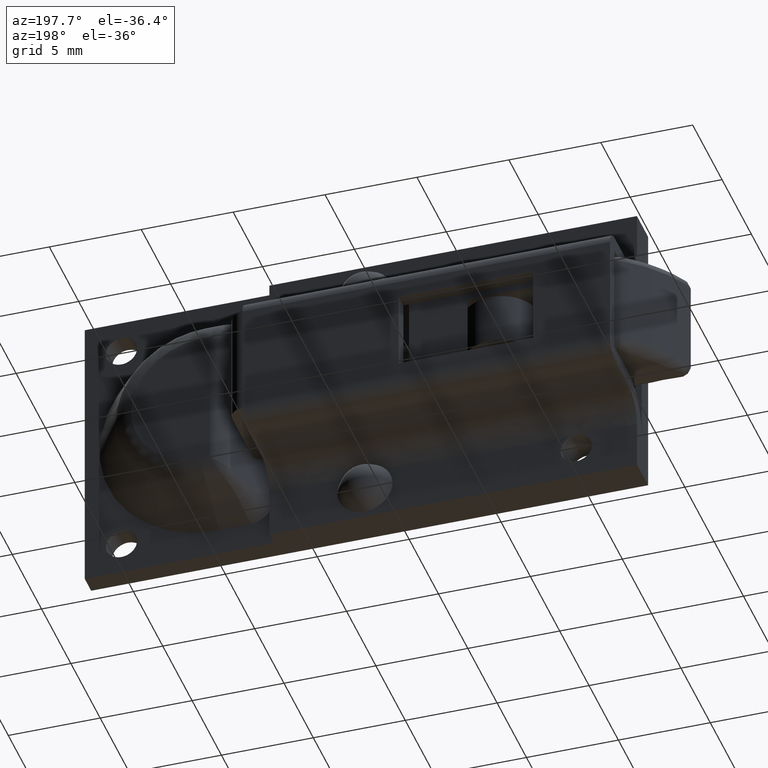
[diagram: clean part render]
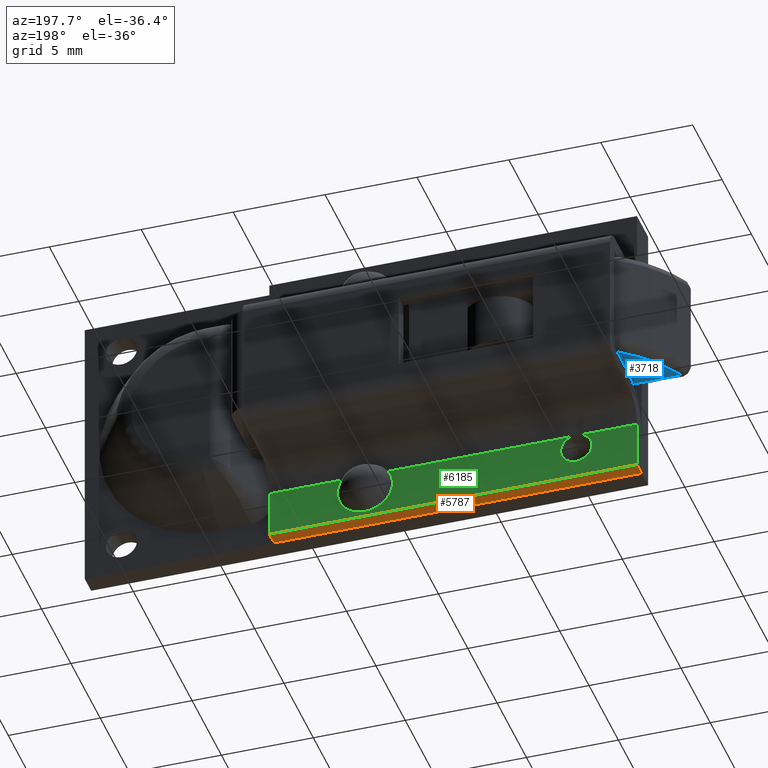
[diagram: same view with three faces highlighted in distinct colors, each labeled with its STEP entity id]
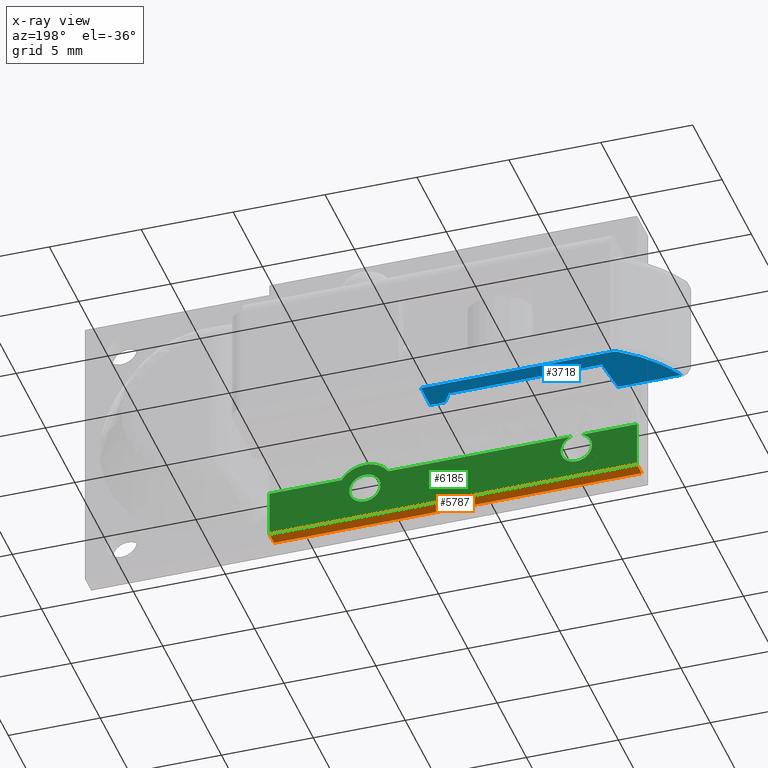
[diagram: x-ray of the same camera — body ghosted, the three highlighted faces saturated]
A machine part, auxiliary view with three faces highlighted in distinct colors.
The next image is the same camera in x-ray (body ghosted, the three faces saturated) — at least one of them is partly hidden behind the body in this view.
Their STEP definitions:

[orange] entity #5787 — the highlighted face is a freeform B-spline surface patch.
#5517=CARTESIAN_POINT('',(-8.0,1.900000000000000,-8.0));
#5518=VERTEX_POINT('',#5517);
#5524=CARTESIAN_POINT('',(-8.0,1.099997000000000,-8.0));
#5525=VERTEX_POINT('',#5524);
#5526=CARTESIAN_POINT('',(-8.0,1.900000000000000,-8.0));
#5527=CARTESIAN_POINT('',(-8.0,1.099997000000000,-8.0));
#5528=QUASI_UNIFORM_CURVE('',1,(#5526,#5527),.UNSPECIFIED.,.F.,.U.);
#5529=EDGE_CURVE('',#5518,#5525,#5528,.T.);
#5760=CARTESIAN_POINT('',(12.998999961236120,1.060036899617868,-8.0));
#5761=CARTESIAN_POINT('',(-8.999000497677923,1.060036899617868,-8.0));
#5762=CARTESIAN_POINT('',(12.998999961236120,1.939960107534716,-8.0));
#5763=CARTESIAN_POINT('',(-8.999000497677923,1.939960107534716,-8.0));
#5764=B_SPLINE_SURFACE_WITH_KNOTS('',1,1,((#5760,#5762),(#5761,#5763)),.UNSPECIFIED.,.F.,.F.,.U.,(2,2),(2,2),(0.0,21.998000458914039),(0.041708384862170,0.958291622588411),.UNSPECIFIED.);
#5765=ORIENTED_EDGE('',*,*,#5529,.F.);
#5766=CARTESIAN_POINT('',(12.0,1.900000000000000,-8.0));
#5767=VERTEX_POINT('',#5766);
#5768=CARTESIAN_POINT('',(12.0,1.900000000000000,-8.0));
#5769=CARTESIAN_POINT('',(-8.0,1.900000000000000,-8.0));
#5770=QUASI_UNIFORM_CURVE('',1,(#5768,#5769),.UNSPECIFIED.,.F.,.U.);
#5771=EDGE_CURVE('',#5767,#5518,#5770,.T.);
#5772=ORIENTED_EDGE('',*,*,#5771,.F.);
#5773=CARTESIAN_POINT('',(12.0,1.099997000000000,-8.0));
#5774=VERTEX_POINT('',#5773);
#5775=CARTESIAN_POINT('',(12.0,1.900000000000000,-8.0));
#5776=CARTESIAN_POINT('',(12.0,1.099997000000000,-8.0));
#5777=QUASI_UNIFORM_CURVE('',1,(#5775,#5776),.UNSPECIFIED.,.F.,.U.);
#5778=EDGE_CURVE('',#5767,#5774,#5777,.T.);
#5779=ORIENTED_EDGE('',*,*,#5778,.T.);
#5780=CARTESIAN_POINT('',(12.0,1.099997000000000,-8.0));
#5781=CARTESIAN_POINT('',(-8.0,1.099997000000000,-8.0));
#5782=QUASI_UNIFORM_CURVE('',1,(#5780,#5781),.UNSPECIFIED.,.F.,.U.);
#5783=EDGE_CURVE('',#5774,#5525,#5782,.T.);
#5784=ORIENTED_EDGE('',*,*,#5783,.T.);
#5785=EDGE_LOOP('',(#5765,#5772,#5779,#5784));
#5786=FACE_OUTER_BOUND('',#5785,.T.);
#5787=ADVANCED_FACE('',(#5786),#5764,.T.);

[blue] entity #3718 — the highlighted face is a freeform B-spline surface patch.
#2687=CARTESIAN_POINT('',(-7.054643407374501,1.599997000000000,-3.0));
#2688=VERTEX_POINT('',#2687);
#2704=CARTESIAN_POINT('',(-6.854643407374500,3.699997000000000,-3.0));
#2705=VERTEX_POINT('',#2704);
#2706=CARTESIAN_POINT('',(-6.854643407374500,3.699997000000000,-3.0));
#2707=CARTESIAN_POINT('',(-7.054643407374501,1.599997000000000,-3.0));
#2708=QUASI_UNIFORM_CURVE('',1,(#2706,#2707),.UNSPECIFIED.,.F.,.U.);
#2709=EDGE_CURVE('',#2705,#2688,#2708,.T.);
#2748=CARTESIAN_POINT('',(1.464406292735640,3.699997000000000,-3.0));
#2749=VERTEX_POINT('',#2748);
#2771=CARTESIAN_POINT('',(1.464406292735640,3.699997000000000,-3.0));
#2772=CARTESIAN_POINT('',(-6.854643407374500,3.699997000000000,-3.0));
#2773=QUASI_UNIFORM_CURVE('',1,(#2771,#2772),.UNSPECIFIED.,.F.,.U.);
#2774=EDGE_CURVE('',#2749,#2705,#2773,.T.);
#2795=CARTESIAN_POINT('',(-10.500112306272760,1.599997000000000,-3.0));
#2796=VERTEX_POINT('',#2795);
#2810=CARTESIAN_POINT('',(-7.054643407374501,1.599997000000000,-3.0));
#2811=CARTESIAN_POINT('',(-10.500112306272760,1.599997000000000,-3.0));
#2812=QUASI_UNIFORM_CURVE('',1,(#2810,#2811),.UNSPECIFIED.,.F.,.U.);
#2813=EDGE_CURVE('',#2688,#2796,#2812,.T.);
#2838=CARTESIAN_POINT('',(1.877154515628485,3.039461772422355,-3.0));
#2839=VERTEX_POINT('',#2838);
#2861=CARTESIAN_POINT('',(1.877154515628485,3.039461772422355,-3.0));
#2862=CARTESIAN_POINT('',(1.464406292735640,3.699997000000000,-3.0));
#2863=QUASI_UNIFORM_CURVE('',1,(#2861,#2862),.UNSPECIFIED.,.F.,.U.);
#2864=EDGE_CURVE('',#2839,#2749,#2863,.T.);
#2941=CARTESIAN_POINT('',(2.700000000000000,3.039461772422355,-3.0));
#2942=VERTEX_POINT('',#2941);
#2964=CARTESIAN_POINT('',(2.700000000000000,3.039461772422355,-3.0));
#2965=CARTESIAN_POINT('',(1.877154515628485,3.039461772422355,-3.0));
#2966=QUASI_UNIFORM_CURVE('',1,(#2964,#2965),.UNSPECIFIED.,.F.,.U.);
#2967=EDGE_CURVE('',#2942,#2839,#2966,.T.);
#2991=CARTESIAN_POINT('',(-7.984340529275508,4.512974888218630,-3.0));
#2992=VERTEX_POINT('',#2991);
#3006=CARTESIAN_POINT('',(-10.500112306272770,1.599997000000005,-3.0));
#3007=CARTESIAN_POINT('',(-9.628868948889069,3.390406902280602,-3.000000000000000));
#3008=CARTESIAN_POINT('',(-7.984340529275505,4.512974888218628,-3.0));
#3016=(BOUNDED_CURVE()B_SPLINE_CURVE(2,(#3006,#3007,#3008),.UNSPECIFIED.,.F.,.U.)CURVE()GEOMETRIC_REPRESENTATION_ITEM()QUASI_UNIFORM_CURVE()RATIONAL_B_SPLINE_CURVE((1.0,0.966524194806806,1.0))REPRESENTATION_ITEM(''));
#3017=EDGE_CURVE('',#2796,#2992,#3016,.T.);
#3071=CARTESIAN_POINT('',(-7.702469000000000,4.599996999999890,-3.0));
#3072=VERTEX_POINT('',#3071);
#3088=CARTESIAN_POINT('',(-7.984340529275508,4.512974888218630,-3.0));
#3089=CARTESIAN_POINT('',(-7.856838566662417,4.599997947849363,-3.0));
#3090=CARTESIAN_POINT('',(-7.702469000000000,4.599996999999890,-3.0));
#3098=(BOUNDED_CURVE()B_SPLINE_CURVE(2,(#3088,#3089,#3090),.UNSPECIFIED.,.F.,.U.)CURVE()GEOMETRIC_REPRESENTATION_ITEM()QUASI_UNIFORM_CURVE()RATIONAL_B_SPLINE_CURVE((1.0,0.955497772116606,1.0))REPRESENTATION_ITEM(''));
#3099=EDGE_CURVE('',#2992,#3072,#3098,.T.);
#3181=CARTESIAN_POINT('',(2.700000000000000,4.599997000000000,-3.0));
#3182=VERTEX_POINT('',#3181);
#3183=CARTESIAN_POINT('',(2.700000000000000,4.599997000000000,-3.0));
#3184=CARTESIAN_POINT('',(2.700000000000000,3.039461772422355,-3.0));
#3185=QUASI_UNIFORM_CURVE('',1,(#3183,#3184),.UNSPECIFIED.,.F.,.U.);
#3186=EDGE_CURVE('',#3182,#2942,#3185,.T.);
#3249=CARTESIAN_POINT('',(-7.702469000000000,4.599996999999890,-3.0));
#3250=CARTESIAN_POINT('',(2.700000000000000,4.599997000000000,-3.0));
#3251=QUASI_UNIFORM_CURVE('',1,(#3249,#3250),.UNSPECIFIED.,.F.,.U.);
#3252=EDGE_CURVE('',#3072,#3182,#3251,.T.);
#3702=CARTESIAN_POINT('',(-11.159458138213131,1.450147033976435,-3.0));
#3703=CARTESIAN_POINT('',(3.359345949958565,1.450147033976435,-3.0));
#3704=CARTESIAN_POINT('',(-11.159458138213131,4.749847073311925,-3.0));
#3705=CARTESIAN_POINT('',(3.359345949958565,4.749847073311925,-3.0));
#3706=B_SPLINE_SURFACE_WITH_KNOTS('',1,1,((#3702,#3704),(#3703,#3705)),.UNSPECIFIED.,.F.,.F.,.U.,(2,2),(2,2),(0.0,14.518804088171690),(0.0,3.299700039335489),.UNSPECIFIED.);
#3707=ORIENTED_EDGE('',*,*,#2774,.T.);
#3708=ORIENTED_EDGE('',*,*,#2709,.T.);
#3709=ORIENTED_EDGE('',*,*,#2813,.T.);
#3710=ORIENTED_EDGE('',*,*,#3017,.T.);
#3711=ORIENTED_EDGE('',*,*,#3099,.T.);
#3712=ORIENTED_EDGE('',*,*,#3252,.T.);
#3713=ORIENTED_EDGE('',*,*,#3186,.T.);
#3714=ORIENTED_EDGE('',*,*,#2967,.T.);
#3715=ORIENTED_EDGE('',*,*,#2864,.T.);
#3716=EDGE_LOOP('',(#3707,#3708,#3709,#3710,#3711,#3712,#3713,#3714,#3715));
#3717=FACE_OUTER_BOUND('',#3716,.T.);
#3718=ADVANCED_FACE('',(#3717),#3706,.F.);

[green] entity #6185 — the highlighted face is a freeform B-spline surface patch.
#4259=CARTESIAN_POINT('',(6.252957478574748,1.900000000000000,-6.850566902077073));
#4260=VERTEX_POINT('',#4259);
#4266=CARTESIAN_POINT('',(6.512783223537830,1.900000000000000,-5.399994000000000));
#4267=VERTEX_POINT('',#4266);
#4268=CARTESIAN_POINT('',(6.512783223537825,1.900000000000000,-5.399993999999988));
#4269=CARTESIAN_POINT('',(5.840008508814952,1.900000000000000,-5.641535848183187));
#4270=CARTESIAN_POINT('',(5.962595527499302,1.900000000000000,-6.345766424091591));
#4271=CARTESIAN_POINT('',(6.015746104220259,1.900000000000000,-6.651102679559571));
#4272=CARTESIAN_POINT('',(6.252957478574748,1.900000000000000,-6.850566902077073));
#4280=(BOUNDED_CURVE()B_SPLINE_CURVE(2,(#4268,#4269,#4270,#4271,#4272),.UNSPECIFIED.,.F.,.U.)B_SPLINE_CURVE_WITH_KNOTS((3,2,3),(0.0,0.250000000000000,0.375009439131359),.UNSPECIFIED.)CURVE()GEOMETRIC_REPRESENTATION_ITEM()RATIONAL_B_SPLINE_CURVE((1.0,0.765340917535369,1.0,0.882661598856069,0.882670459436723))REPRESENTATION_ITEM(''));
#4281=EDGE_CURVE('',#4267,#4260,#4280,.T.);
#4283=CARTESIAN_POINT('',(7.087222776462180,1.900000000000000,-5.399994000000000));
#4284=VERTEX_POINT('',#4283);
#4285=CARTESIAN_POINT('',(7.087222776462180,1.900000000000000,-5.399994000000000));
#4286=CARTESIAN_POINT('',(6.947947770242990,1.900000000000000,-5.350092728982340));
#4287=CARTESIAN_POINT('',(6.800002999999943,1.900000000000000,-5.349997000000012));
#4288=CARTESIAN_POINT('',(6.652591627790971,1.900000000000000,-5.349901616157635));
#4289=CARTESIAN_POINT('',(6.512783223537830,1.900000000000000,-5.399994000000000));
#4290=B_SPLINE_CURVE_WITH_KNOTS('',2,(#4285,#4286,#4287,#4288,#4289),.UNSPECIFIED.,.F.,.U.,(3,2,3),(0.0,0.500000000000000,1.0),.UNSPECIFIED.);
#4291=EDGE_CURVE('',#4284,#4267,#4290,.T.);
#4293=CARTESIAN_POINT('',(6.788866821037946,1.900000000000000,-7.049924047174123));
#4294=VERTEX_POINT('',#4293);
#4295=CARTESIAN_POINT('',(6.788866821037946,1.900000000000000,-7.049924047174123));
#4296=CARTESIAN_POINT('',(6.794434671489611,1.900000000000000,-7.049997000000000));
#4297=CARTESIAN_POINT('',(6.800002999999999,1.900000000000000,-7.049996999999999));
#4298=CARTESIAN_POINT('',(7.514823453816337,1.900000000000000,-7.049996999999999));
#4299=CARTESIAN_POINT('',(7.637410472500695,1.900000000000000,-6.345766424091601));
#4300=CARTESIAN_POINT('',(7.759997491185054,1.900000000000000,-5.641535848183199));
#4301=CARTESIAN_POINT('',(7.087222776462183,1.900000000000000,-5.399993999999992));
#4309=(BOUNDED_CURVE()B_SPLINE_CURVE(2,(#4295,#4296,#4297,#4298,#4299,#4300,#4301),.UNSPECIFIED.,.F.,.U.)B_SPLINE_CURVE_WITH_KNOTS((3,2,2,3),(0.497461501481753,0.500000000000000,0.750000000000000,1.0),.UNSPECIFIED.)CURVE()GEOMETRIC_REPRESENTATION_ITEM()RATIONAL_B_SPLINE_CURVE((0.995282934525264,0.997617273067481,1.0,0.765340917535369,1.0,0.765340917535369,1.0))REPRESENTATION_ITEM(''));
#4310=EDGE_CURVE('',#4294,#4284,#4309,.T.);
#4384=CARTESIAN_POINT('',(6.252957478574748,1.900000000000000,-6.850566902077073));
#4385=CARTESIAN_POINT('',(6.485311492515894,1.900000000000000,-7.045946709920234));
#4386=CARTESIAN_POINT('',(6.788866821037946,1.900000000000000,-7.049924047174123));
#4394=(BOUNDED_CURVE()B_SPLINE_CURVE(2,(#4384,#4385,#4386),.UNSPECIFIED.,.F.,.U.)B_SPLINE_CURVE_WITH_KNOTS((3,3),(0.375009439131359,0.497461501481753),.UNSPECIFIED.)CURVE()GEOMETRIC_REPRESENTATION_ITEM()RATIONAL_B_SPLINE_CURVE((0.882670459436723,0.882679138752320,0.995282934525263))REPRESENTATION_ITEM(''));
#4395=EDGE_CURVE('',#4260,#4294,#4394,.T.);
#4446=CARTESIAN_POINT('',(-5.294173995004110,1.900000000000000,-6.807832030170788));
#4447=VERTEX_POINT('',#4446);
#4453=CARTESIAN_POINT('',(-4.987194492814640,1.900000000000000,-5.399994000000000));
#4454=VERTEX_POINT('',#4453);
#4455=CARTESIAN_POINT('',(-4.987194492814637,1.900000000000000,-5.399994000000008));
#4456=CARTESIAN_POINT('',(-5.659985446148970,1.900000000000000,-5.641520522742810));
#4457=CARTESIAN_POINT('',(-5.537406502573261,1.900000000000000,-6.345762761371406));
#4458=CARTESIAN_POINT('',(-5.490360667527482,1.900000000000000,-6.616051142265530));
#4459=CARTESIAN_POINT('',(-5.294173995004110,1.899999999999999,-6.807832030170788));
#4467=(BOUNDED_CURVE()B_SPLINE_CURVE(2,(#4455,#4456,#4457,#4458,#4459),.UNSPECIFIED.,.F.,.U.)B_SPLINE_CURVE_WITH_KNOTS((3,2,3),(0.0,0.250000000000000,0.362169782153102),.UNSPECIFIED.)CURVE()GEOMETRIC_REPRESENTATION_ITEM()RATIONAL_B_SPLINE_CURVE((1.0,0.765336435582573,1.0,0.894711356400108,0.883904346526579))REPRESENTATION_ITEM(''));
#4468=EDGE_CURVE('',#4454,#4447,#4467,.T.);
#4470=CARTESIAN_POINT('',(-4.412799507185360,1.900000000000000,-5.399994000000000));
#4471=VERTEX_POINT('',#4470);
#4485=CARTESIAN_POINT('',(-4.718505960692326,1.900000000000000,-7.049803457502772));
#4486=VERTEX_POINT('',#4485);
#4487=CARTESIAN_POINT('',(-4.718505960692326,1.900000000000000,-7.049803457502772));
#4488=CARTESIAN_POINT('',(-4.709252577643505,1.900000000000000,-7.050004999999999));
#4489=CARTESIAN_POINT('',(-4.699997000000000,1.900000000000000,-7.050005000000000));
#4490=CARTESIAN_POINT('',(-3.985166441002449,1.900000000000000,-7.050005000000001));
#4491=CARTESIAN_POINT('',(-3.862587497426739,1.900000000000000,-6.345762761371405));
#4492=CARTESIAN_POINT('',(-3.740008553851028,1.900000000000000,-5.641520522742811));
#4493=CARTESIAN_POINT('',(-4.412799507185363,1.900000000000000,-5.399994000000008));
#4501=(BOUNDED_CURVE()B_SPLINE_CURVE(2,(#4487,#4488,#4489,#4490,#4491,#4492,#4493),.UNSPECIFIED.,.F.,.U.)B_SPLINE_CURVE_WITH_KNOTS((3,2,2,3),(0.495787234462185,0.500000000000000,0.750000000000000,1.0),.UNSPECIFIED.)CURVE()GEOMETRIC_REPRESENTATION_ITEM()RATIONAL_B_SPLINE_CURVE((0.992224608714327,0.996045669691366,1.0,0.765336435582573,1.0,0.765336435582573,1.0))REPRESENTATION_ITEM(''));
#4502=EDGE_CURVE('',#4486,#4471,#4501,.T.);
#4576=CARTESIAN_POINT('',(-5.294173995004110,1.899999999999999,-6.807832030170788));
#4577=CARTESIAN_POINT('',(-5.054121529806949,1.900000000000000,-7.042493612060167));
#4578=CARTESIAN_POINT('',(-4.718505960692326,1.900000000000000,-7.049803457502772));
#4586=(BOUNDED_CURVE()B_SPLINE_CURVE(2,(#4576,#4577,#4578),.UNSPECIFIED.,.F.,.U.)B_SPLINE_CURVE_WITH_KNOTS((3,3),(0.362169782153101,0.495787234462185),.UNSPECIFIED.)CURVE()GEOMETRIC_REPRESENTATION_ITEM()RATIONAL_B_SPLINE_CURVE((0.883904346526579,0.871030958536852,0.992224608714326))REPRESENTATION_ITEM(''));
#4587=EDGE_CURVE('',#4447,#4486,#4586,.T.);
#4804=CARTESIAN_POINT('',(5.531137680174500,1.900000000000000,-5.399994000000000));
#4805=VERTEX_POINT('',#4804);
#4806=CARTESIAN_POINT('',(8.068868319825510,1.900000000000000,-5.399994000000000));
#4807=VERTEX_POINT('',#4806);
#4808=CARTESIAN_POINT('',(5.531137680174493,1.900000000000000,-5.399993999999996));
#4809=CARTESIAN_POINT('',(5.972477821721573,1.900000000000000,-4.699982000000036));
#4810=CARTESIAN_POINT('',(6.800002999999999,1.900000000000000,-4.699982000000036));
#4811=CARTESIAN_POINT('',(7.627528178278429,1.900000000000000,-4.699982000000036));
#4812=CARTESIAN_POINT('',(8.068868319825510,1.900000000000000,-5.399994000000000));
#4820=(BOUNDED_CURVE()B_SPLINE_CURVE(2,(#4808,#4809,#4810,#4811,#4812),.UNSPECIFIED.,.F.,.U.)B_SPLINE_CURVE_WITH_KNOTS((3,2,3),(0.0,0.500000000000000,1.0),.UNSPECIFIED.)CURVE()GEOMETRIC_REPRESENTATION_ITEM()RATIONAL_B_SPLINE_CURVE((1.0,0.875592751606975,1.0,0.875592751606975,1.0))REPRESENTATION_ITEM(''));
#4821=EDGE_CURVE('',#4805,#4807,#4820,.T.);
#5502=CARTESIAN_POINT('',(-8.0,1.900000000000000,-5.399994000000000));
#5503=VERTEX_POINT('',#5502);
#5517=CARTESIAN_POINT('',(-8.0,1.900000000000000,-8.0));
#5518=VERTEX_POINT('',#5517);
#5519=CARTESIAN_POINT('',(-8.0,1.900000000000000,-5.399994000000000));
#5520=CARTESIAN_POINT('',(-8.0,1.900000000000000,-8.0));
#5521=QUASI_UNIFORM_CURVE('',1,(#5519,#5520),.UNSPECIFIED.,.F.,.U.);
#5522=EDGE_CURVE('',#5503,#5518,#5521,.T.);
#5766=CARTESIAN_POINT('',(12.0,1.900000000000000,-8.0));
#5767=VERTEX_POINT('',#5766);
#5768=CARTESIAN_POINT('',(12.0,1.900000000000000,-8.0));
#5769=CARTESIAN_POINT('',(-8.0,1.900000000000000,-8.0));
#5770=QUASI_UNIFORM_CURVE('',1,(#5768,#5769),.UNSPECIFIED.,.F.,.U.);
#5771=EDGE_CURVE('',#5767,#5518,#5770,.T.);
#5926=CARTESIAN_POINT('',(12.0,1.900000000000000,-5.399994000000000));
#5927=VERTEX_POINT('',#5926);
#5928=CARTESIAN_POINT('',(12.0,1.900000000000000,-5.399994000000000));
#5929=CARTESIAN_POINT('',(12.0,1.900000000000000,-8.0));
#5930=QUASI_UNIFORM_CURVE('',1,(#5928,#5929),.UNSPECIFIED.,.F.,.U.);
#5931=EDGE_CURVE('',#5927,#5767,#5930,.T.);
#6150=CARTESIAN_POINT('',(-8.998999961236118,1.900000000000000,-8.164835880913941));
#6151=CARTESIAN_POINT('',(-8.998999961236118,1.900000000000000,-4.535146266608396));
#6152=CARTESIAN_POINT('',(12.999000497677921,1.900000000000000,-8.164835880913941));
#6153=CARTESIAN_POINT('',(12.999000497677921,1.900000000000000,-4.535146266608396));
#6154=B_SPLINE_SURFACE_WITH_KNOTS('',1,1,((#6150,#6152),(#6151,#6153)),.UNSPECIFIED.,.F.,.F.,.U.,(2,2),(2,2),(0.0,3.629689614305545),(0.0,21.998000458914039),.UNSPECIFIED.);
#6155=ORIENTED_EDGE('',*,*,#4821,.T.);
#6156=CARTESIAN_POINT('',(12.0,1.900000000000000,-5.399994000000000));
#6157=CARTESIAN_POINT('',(8.068868319825510,1.900000000000000,-5.399994000000000));
#6158=QUASI_UNIFORM_CURVE('',1,(#6156,#6157),.UNSPECIFIED.,.F.,.U.);
#6159=EDGE_CURVE('',#5927,#4807,#6158,.T.);
#6160=ORIENTED_EDGE('',*,*,#6159,.F.);
#6161=ORIENTED_EDGE('',*,*,#5931,.T.);
#6162=ORIENTED_EDGE('',*,*,#5771,.T.);
#6163=ORIENTED_EDGE('',*,*,#5522,.F.);
#6164=CARTESIAN_POINT('',(-4.987194492814640,1.900000000000000,-5.399994000000000));
#6165=CARTESIAN_POINT('',(-8.0,1.900000000000000,-5.399994000000000));
#6166=QUASI_UNIFORM_CURVE('',1,(#6164,#6165),.UNSPECIFIED.,.F.,.U.);
#6167=EDGE_CURVE('',#4454,#5503,#6166,.T.);
#6168=ORIENTED_EDGE('',*,*,#6167,.F.);
#6169=ORIENTED_EDGE('',*,*,#4468,.T.);
#6170=ORIENTED_EDGE('',*,*,#4587,.T.);
#6171=ORIENTED_EDGE('',*,*,#4502,.T.);
#6172=CARTESIAN_POINT('',(5.531137680174500,1.900000000000000,-5.399994000000000));
#6173=CARTESIAN_POINT('',(-4.412799507185360,1.900000000000000,-5.399994000000000));
#6174=QUASI_UNIFORM_CURVE('',1,(#6172,#6173),.UNSPECIFIED.,.F.,.U.);
#6175=EDGE_CURVE('',#4805,#4471,#6174,.T.);
#6176=ORIENTED_EDGE('',*,*,#6175,.F.);
#6177=EDGE_LOOP('',(#6155,#6160,#6161,#6162,#6163,#6168,#6169,#6170,#6171,#6176));
#6178=FACE_OUTER_BOUND('',#6177,.T.);
#6179=ORIENTED_EDGE('',*,*,#4291,.T.);
#6180=ORIENTED_EDGE('',*,*,#4281,.T.);
#6181=ORIENTED_EDGE('',*,*,#4395,.T.);
#6182=ORIENTED_EDGE('',*,*,#4310,.T.);
#6183=EDGE_LOOP('',(#6179,#6180,#6181,#6182));
#6184=FACE_BOUND('',#6183,.T.);
#6185=ADVANCED_FACE('',(#6178,#6184),#6154,.T.);